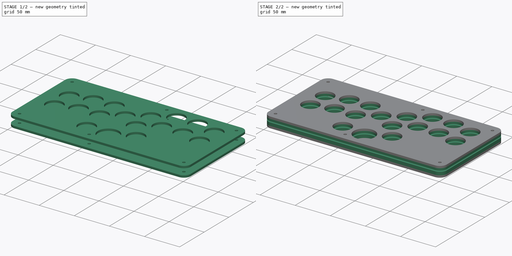
[diagram: build sequence overview — one tinted view per stage of 2, left to right]
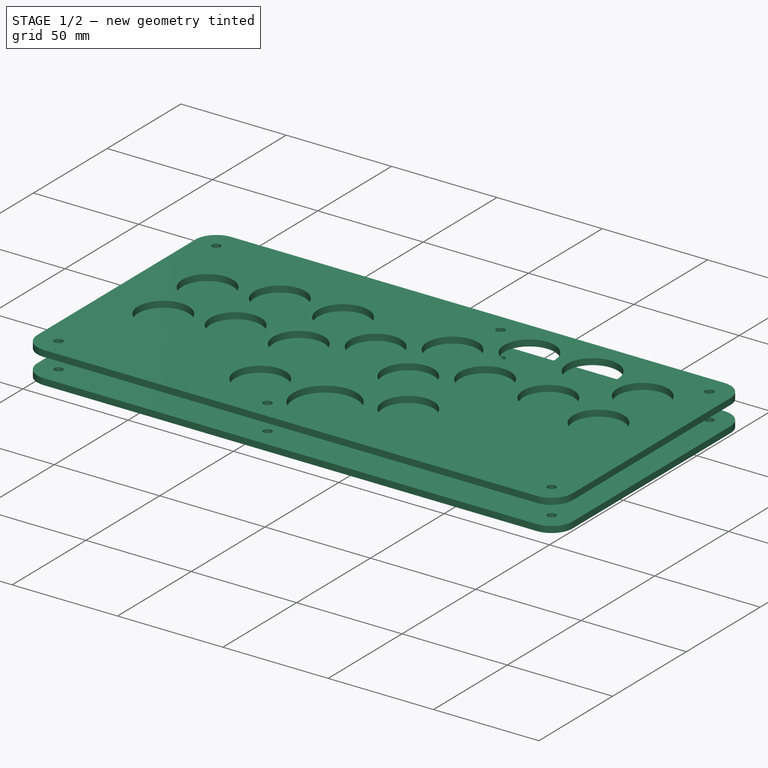
[diagram: stage 1 of 2 — iso view after this stage's code; geometry added in this stage tinted green]
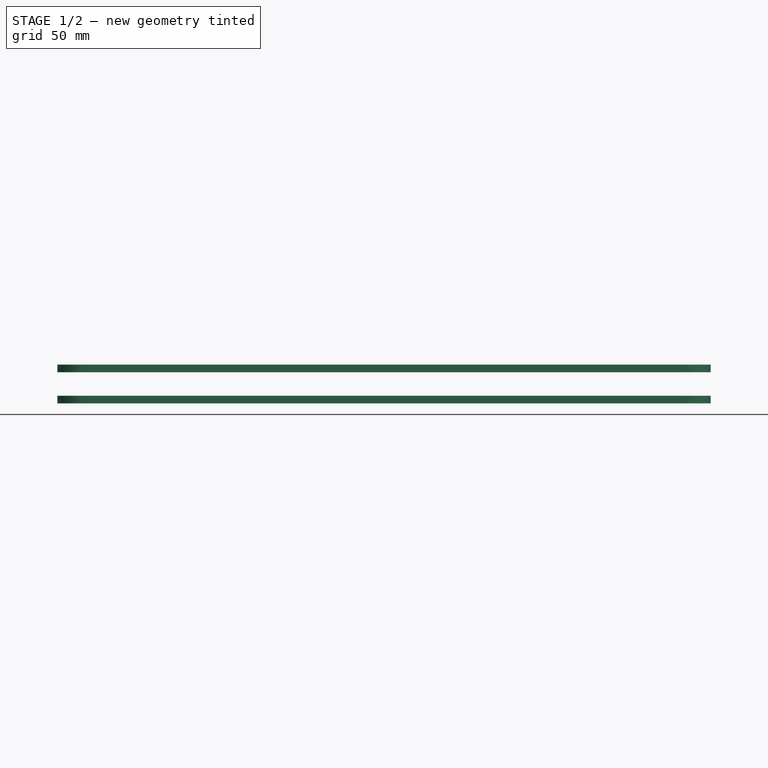
[diagram: stage 1 of 2 — front view after this stage's code; geometry added in this stage tinted green]
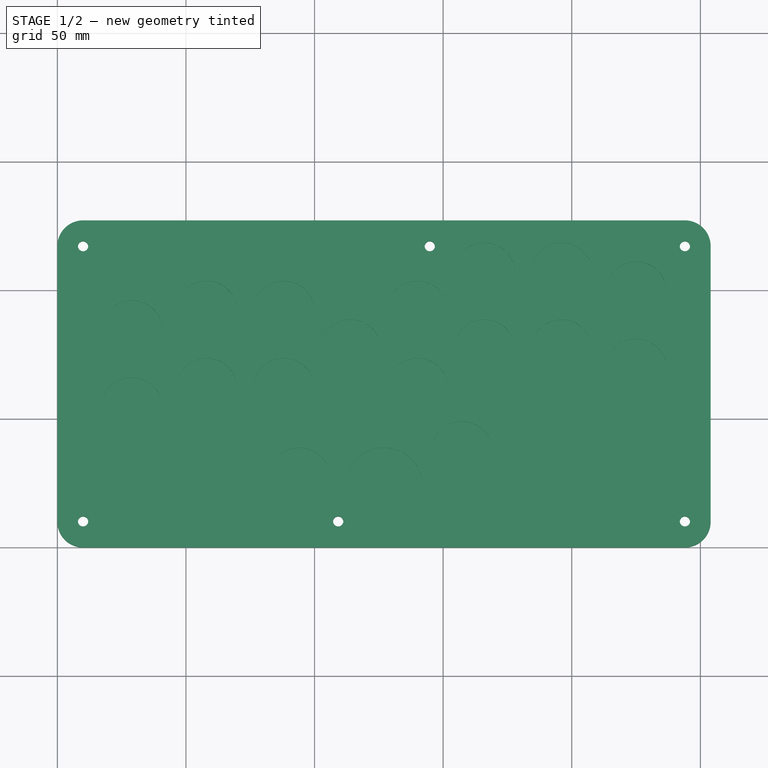
[diagram: stage 1 of 2 — top view after this stage's code; geometry added in this stage tinted green]
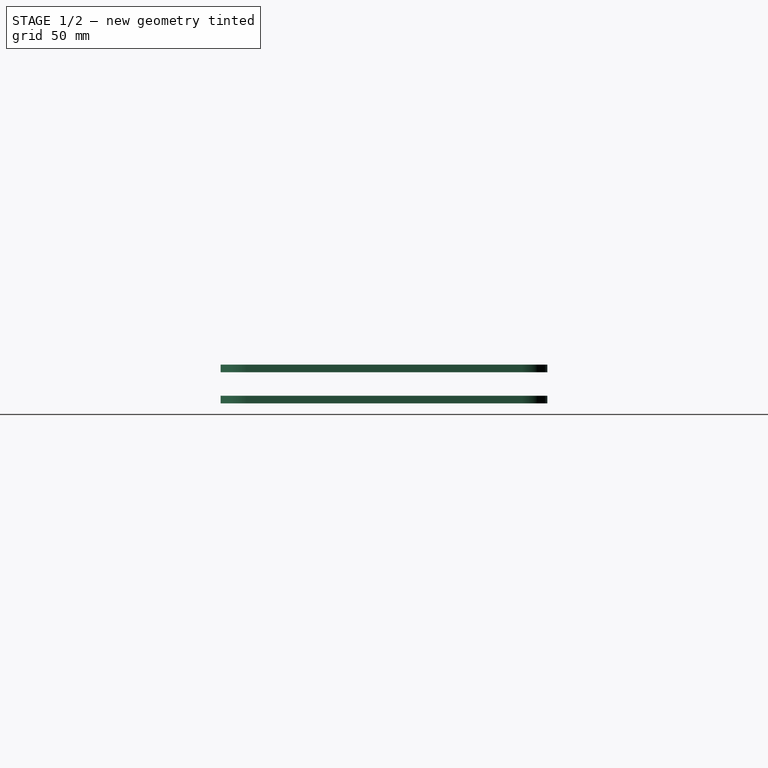
[diagram: stage 1 of 2 — right view after this stage's code; geometry added in this stage tinted green]
FCSTD DOCUMENT  (FreeCAD 0.20R29177 +426 (Git))
Label: complete
License: All rights reserved
LicenseURL: http://en.wikipedia.org/wiki/All_rights_reserved
objects: Sketcher::SketchObject×4, Part::Extrusion×4, App::VRMLObject×1
note: 8 computed .brp shape members not serialized (recipe doc carries the construction recipe); baked Part::Feature solids carry a one-line shape summary decoded from their .brp

FEATURE [Part::Extrusion] Extrude002
  Base = -> Sketch002
  Dir = (0,0,1)
  DirMode = 2
  FaceMakerClass = Part::FaceMakerBullseye
  LengthFwd = 3
  LengthRev = 0
  Placement = pos=(0,0,-5.3) rot=(0,0,1;0rad)
  Reversed = true
  Solid = true
  Symmetric = false
FEATURE [Sketcher::SketchObject] Sketch003
  FullyConstrained = true
  MapMode = 5
  sketch-geometry (60):
    g0: Circle CenterX=165.971 CenterY=76.4159 CenterZ=0 NormalX=0 NormalY=0 NormalZ=1 AngleXU=0 Radius=12
    g1: Circle CenterX=195.971 CenterY=76.4159 CenterZ=0 NormalX=0 NormalY=0 NormalZ=1 AngleXU=0 Radius=12
    g2: Circle CenterX=165.971 CenterY=106.416 CenterZ=0 NormalX=0 NormalY=0 NormalZ=1 AngleXU=0 Radius=12
    g3: Circle CenterX=195.971 CenterY=106.416 CenterZ=0 NormalX=0 NormalY=0 NormalZ=1 AngleXU=0 Radius=12
    g4: Circle CenterX=225.019 CenterY=98.9159 CenterZ=0 NormalX=0 NormalY=0 NormalZ=1 AngleXU=0 Radius=12
    g5: Circle CenterX=225.019 CenterY=68.9159 CenterZ=0 NormalX=0 NormalY=0 NormalZ=1 AngleXU=0 Radius=12
    g6: Circle CenterX=139.99 CenterY=91.4159 CenterZ=0 NormalX=0 NormalY=0 NormalZ=1 AngleXU=0 Radius=12
    g7: Circle CenterX=139.99 CenterY=61.4159 CenterZ=0 NormalX=0 NormalY=0 NormalZ=1 AngleXU=0 Radius=12
    g8: Circle CenterX=114.01 CenterY=76.4159 CenterZ=0 NormalX=0 NormalY=0 NormalZ=1 AngleXU=0 Radius=12
    g9: Circle CenterX=88.0289 CenterY=91.4159 CenterZ=0 NormalX=0 NormalY=0 NormalZ=1 AngleXU=0 Radius=12
    g10: Circle CenterX=58.0289 CenterY=91.4159 CenterZ=0 NormalX=0 NormalY=0 NormalZ=1 AngleXU=0 Radius=12
    g11: Circle CenterX=127 CenterY=23.5841 CenterZ=0 NormalX=0 NormalY=0 NormalZ=1 AngleXU=0 Radius=15
    g12: LineSegment StartX=139.99 StartY=61.4159 StartZ=0 EndX=88.0289 EndY=91.4159 EndZ=0
    g13: LineSegment StartX=139.99 StartY=61.4159 StartZ=0 EndX=127 EndY=61.4159 EndZ=0
    g14: LineSegment StartX=127 StartY=61.4159 StartZ=0 EndX=114.01 EndY=61.4159 EndZ=0
    g15: LineSegment StartX=10 StartY=127 StartZ=0 EndX=244 EndY=127 EndZ=0
    g16: LineSegment StartX=254 StartY=117 StartZ=0 EndX=254 EndY=10 EndZ=0
    g17: LineSegment StartX=244 StartY=0 StartZ=0 EndX=10 EndY=0 EndZ=0
    g18: LineSegment StartX=0 StartY=10 StartZ=0 EndX=0 EndY=117 EndZ=0
    g19: LineSegment StartX=127 StartY=23.5841 StartZ=0 EndX=0 EndY=23.5841 EndZ=0
    g20: LineSegment StartX=127 StartY=23.5841 StartZ=0 EndX=254 EndY=23.5841 EndZ=0
    g21: LineSegment StartX=58.0289 StartY=91.4159 StartZ=0 EndX=88.0289 EndY=91.4159 EndZ=0
    g22: LineSegment StartX=114.01 StartY=76.4159 StartZ=0 EndX=139.99 EndY=91.4159 EndZ=0
    g23: LineSegment StartX=139.99 StartY=91.4159 StartZ=0 EndX=165.971 EndY=106.416 EndZ=0
    g24: LineSegment StartX=165.971 StartY=106.416 StartZ=0 EndX=195.971 EndY=106.416 EndZ=0
    g25: LineSegment StartX=195.971 StartY=106.416 StartZ=0 EndX=225.019 EndY=98.9159 EndZ=0
    g26: LineSegment StartX=225.019 StartY=98.9159 StartZ=0 EndX=225.019 EndY=68.9159 EndZ=0
    g27: LineSegment StartX=165.971 StartY=106.416 StartZ=0 EndX=165.971 EndY=76.4159 EndZ=0
    g28: LineSegment StartX=139.99 StartY=91.4159 StartZ=0 EndX=139.99 EndY=61.4159 EndZ=0
    g29: LineSegment StartX=139.99 StartY=61.4159 StartZ=0 EndX=127 EndY=23.5841 EndZ=0
    g30: Circle CenterX=28.9815 CenterY=83.9159 CenterZ=0 NormalX=0 NormalY=0 NormalZ=1 AngleXU=0 Radius=12
    g31: Circle CenterX=28.9815 CenterY=53.9159 CenterZ=0 NormalX=0 NormalY=0 NormalZ=1 AngleXU=0 Radius=12
    g32: Circle CenterX=58.0289 CenterY=61.4159 CenterZ=0 NormalX=0 NormalY=0 NormalZ=1 AngleXU=0 Radius=12
    g33: Circle CenterX=88.0289 CenterY=61.4159 CenterZ=0 NormalX=0 NormalY=0 NormalZ=1 AngleXU=0 Radius=12
    g34: LineSegment StartX=58.0289 StartY=91.4159 StartZ=0 EndX=28.9815 EndY=83.9159 EndZ=0
    g35: LineSegment StartX=28.9815 StartY=83.9159 StartZ=0 EndX=28.9815 EndY=53.9159 EndZ=0
    g36: LineSegment StartX=58.0289 StartY=91.4159 StartZ=0 EndX=58.0289 EndY=61.4159 EndZ=0
    g37: LineSegment StartX=88.0289 StartY=91.4159 StartZ=0 EndX=88.0289 EndY=61.4159 EndZ=0
    g38: ArcOfCircle CenterX=10 CenterY=117 CenterZ=0 NormalX=0 NormalY=0 NormalZ=1 AngleXU=0 Radius=10 StartAngle=1.5708 EndAngle=3.14159
    g39: ArcOfCircle CenterX=10 CenterY=10 CenterZ=0 NormalX=0 NormalY=0 NormalZ=1 AngleXU=0 Radius=10 StartAngle=3.14159 EndAngle=4.71239
    g40: ArcOfCircle CenterX=244 CenterY=10 CenterZ=0 NormalX=0 NormalY=0 NormalZ=1 AngleXU=0 Radius=10 StartAngle=4.71239 EndAngle=6.28319
    g41: ArcOfCircle CenterX=244 CenterY=117 CenterZ=0 NormalX=0 NormalY=0 NormalZ=1 AngleXU=0 Radius=10 StartAngle=-9e-16 EndAngle=1.5708
    g42: LineSegment StartX=127 StartY=8.58407 StartZ=0 EndX=127 EndY=0 EndZ=0
    g43: LineSegment StartX=165.971 StartY=118.416 StartZ=0 EndX=165.971 EndY=127 EndZ=0
    g44: Circle CenterX=157.215 CenterY=36.8533 CenterZ=0 NormalX=0 NormalY=0 NormalZ=1 AngleXU=0 Radius=12
    g45: Circle CenterX=94.1366 CenterY=26.5841 CenterZ=0 NormalX=0 NormalY=0 NormalZ=1 AngleXU=0 Radius=12
    g46: LineSegment StartX=94.1366 StartY=26.5841 StartZ=0 EndX=127 EndY=23.5841 EndZ=0
    g47: LineSegment StartX=88.0289 StartY=61.4159 StartZ=0 EndX=94.1366 EndY=26.5841 EndZ=0
    g48: LineSegment StartX=157.215 StartY=36.8533 StartZ=0 EndX=127 EndY=23.5841 EndZ=0
    g49: LineSegment StartX=139.99 StartY=61.4159 StartZ=0 EndX=157.215 EndY=36.8533 EndZ=0
    g50: Circle CenterX=10 CenterY=117 CenterZ=0 NormalX=0 NormalY=0 NormalZ=1 AngleXU=0 Radius=2
    g51: Circle CenterX=244 CenterY=117 CenterZ=0 NormalX=0 NormalY=0 NormalZ=1 AngleXU=0 Radius=2
    g52: Circle CenterX=244 CenterY=10 CenterZ=0 NormalX=0 NormalY=0 NormalZ=1 AngleXU=0 Radius=2
    g53: Circle CenterX=10 CenterY=10 CenterZ=0 NormalX=0 NormalY=0 NormalZ=1 AngleXU=0 Radius=2
    g54: Circle CenterX=109.191 CenterY=10 CenterZ=0 NormalX=0 NormalY=0 NormalZ=1 AngleXU=0 Radius=2
    g55: Circle CenterX=144.809 CenterY=117 CenterZ=0 NormalX=0 NormalY=0 NormalZ=1 AngleXU=0 Radius=2
    g56: LineSegment StartX=127 StartY=23.5841 StartZ=0 EndX=109.191 EndY=10 EndZ=0
    g57: LineSegment StartX=109.191 StartY=10 StartZ=0 EndX=94.1366 EndY=26.5841 EndZ=0
    g58: LineSegment StartX=144.809 StartY=117 StartZ=0 EndX=127 EndY=117 EndZ=0
    g59: LineSegment StartX=109.191 StartY=10 StartZ=0 EndX=127 EndY=10 EndZ=0
  constraints (151):
    c: Radius(g6) = 12
    c: Equal(g6,g7)
    c: Equal(g6,g2)
    c: Equal(g6,g0)
    c: Equal(g6,g3)
    c: Equal(g6,g1)
    c: Equal(g6,g4)
    c: Equal(g6,g5)
    c: Equal(g6,g8)
    c: Equal(g6,g9)
    c: Equal(g6,g10)
    c: Radius(g11) = 15
    c: Horizontal(g2,g3)
    c: Horizontal(g0,g1)
    c: Vertical(g2,g0)
    c: Vertical(g3,g1)
    c: Vertical(g4,g5)
    c: Vertical(g6,g7)
    c: DistanceY(g4,g3) = 7.5
    c: DistanceY(g6,g2) = 15
    c: Coincident(g12,g7)
    c: Coincident(g12,g9)
    c: PointOnObject(g8,g12)
    c: Horizontal(g9,g10)
    c: Coincident(g13,g7)
    c: Horizontal(g13)
    c: Coincident(g14,g13)
    c: Horizontal(g14)
    c: Vertical(g14,g8)
    c: Equal(g13,g14)
    c: Vertical(g13,g11)
    c: Distance(g7,g11) = 40
    c: Horizontal(g15)
    c: Horizontal(g17)
    c: Vertical(g16)
    c: Vertical(g18)
    c: Coincident(g19,g11)
    c: PointOnObject(g19,g18)
    c: Horizontal(g19)
    c: Coincident(g20,g11)
    c: PointOnObject(g20,g16)
    c: Horizontal(g20)
    c: Equal(g20,g19)
    c: Coincident(g21,g10)
    c: Coincident(g21,g9)
    c: Coincident(g22,g8)
    c: Coincident(g22,g6)
    c: Coincident(g23,g6)
    c: Coincident(g23,g2)
    c: Coincident(g24,g2)
    c: Coincident(g24,g3)
    c: Coincident(g25,g3)
    c: Coincident(g25,g4)
    c: Coincident(g26,g4)
    c: Coincident(g26,g5)
    c: Coincident(g27,g2)
    c: Coincident(g27,g0)
    c: Coincident(g28,g6)
    c: Coincident(g28,g7)
    c: Coincident(g29,g7)
    c: Coincident(g29,g11)
    c: Distance(g23) = 30
    c: Equal(g23,g24)
    c: Equal(g23,g25)
    c: Equal(g23,g27)
    c: Equal(g23,g26)
    c: Equal(g23,g22)
    c: Equal(g23,g28)
    c: Equal(g23,g21)
    c: Horizontal(g9,g6)
    c: PointOnObject(g8,g23)
    c: Equal(g6,g30)
    c: Equal(g6,g31)
    c: Equal(g6,g32)
    c: DistanceY(g30,g10) = 7.5
    c: Coincident(g34,g10)
    c: Coincident(g34,g30)
    c: Coincident(g35,g30)
    c: Coincident(g35,g31)
    c: Vertical(g31,g30)
    c: Equal(g6,g33)
    c: Vertical(g32,g10)
    c: Coincident(g36,g10)
    c: Coincident(g36,g32)
    c: Coincident(g37,g9)
    c: Coincident(g37,g33)
    c: Vertical(g9,g33)
    c: Equal(g23, g34-g37) x4
    c: Tangent(g15,g38) = 1.5708
    c: Tangent(g18,g38) = 1.5708
    c: Tangent(g17,g39) = 1.5708
    c: Tangent(g18,g39) = 1.5708
    c: Tangent(g16,g40) = 1.5708
    c: Tangent(g17,g40) = 1.5708
    c: Tangent(g15,g41) = 1.5708
    c: Tangent(g16,g41) = 1.5708
    c: Equal(g39,g38)
    c: Equal(g39,g40)
    c: Equal(g39,g41)
    c: Radius(g39) = 10
    c: PointOnObject(g42,g11)
    c: PointOnObject(g42,g17)
    c: Perpendicular(g11,g42)
    c: Vertical(g42)
    c: DistanceY(g17,g15) = 127
    c: DistanceX(g18,g16) = 254
    c: PointOnObject(g43,g2)
    c: PointOnObject(g43,g15)
    c: Vertical(g43)
    c: Perpendicular(g2,g43)
    c: Equal(g43,g42)
    c: Equal(g6,g44)
    c: Equal(g6,g45)
    c: Coincident(g46,g45)
    c: Coincident(g46,g11)
    c: Distance(g46) = 33
    c: DistanceY(g11,g45) = 3
    c: Coincident(g47,g33)
    c: Coincident(g47,g45)
    c: Coincident(g48,g44)
    c: Coincident(g48,g11)
    c: Equal(g46,g48)
    c: Coincident(g49,g7)
    c: Coincident(g49,g44)
    c: Equal(g49,g23)
    c: Coincident(g50,g38)
    c: Coincident(g51,g41)
    c: Coincident(g52,g40)
    c: Coincident(g53,g39)
    c: Radius(g50) = 2
    c: Equal(g50,g53)
    c: Equal(g50,g51)
    c: Equal(g50,g52)
    c: Horizontal(g55,g38)
    c: Horizontal(g39,g54)
    c: Equal(g50,g55)
    c: Equal(g50,g54)
    c: Coincident(g56,g11)
    c: Coincident(g56,g54)
    c: Coincident(g57,g54)
    c: Coincident(g57,g45)
    c: Equal(g57,g56)
    c: Coincident(g58,g55)
    c: Horizontal(g58)
    c: Coincident(g59,g54)
    c: Horizontal(g59)
    c: Vertical(g59,g42)
    c: Vertical(g58,g42)
    c: Equal(g58,g59)
    c: Vertical(g18,g-1)
    c: Horizontal(g17,g-1)
FEATURE [Part::Extrusion] Extrude003
  Base = -> Sketch003
  Dir = (0,0,1)
  DirMode = 2
  FaceMakerClass = Part::FaceMakerBullseye
  LengthFwd = 3
  LengthRev = 0
  Placement = pos=(0,0,3.8) rot=(0,0,1;0rad)
  Solid = true
  Symmetric = false
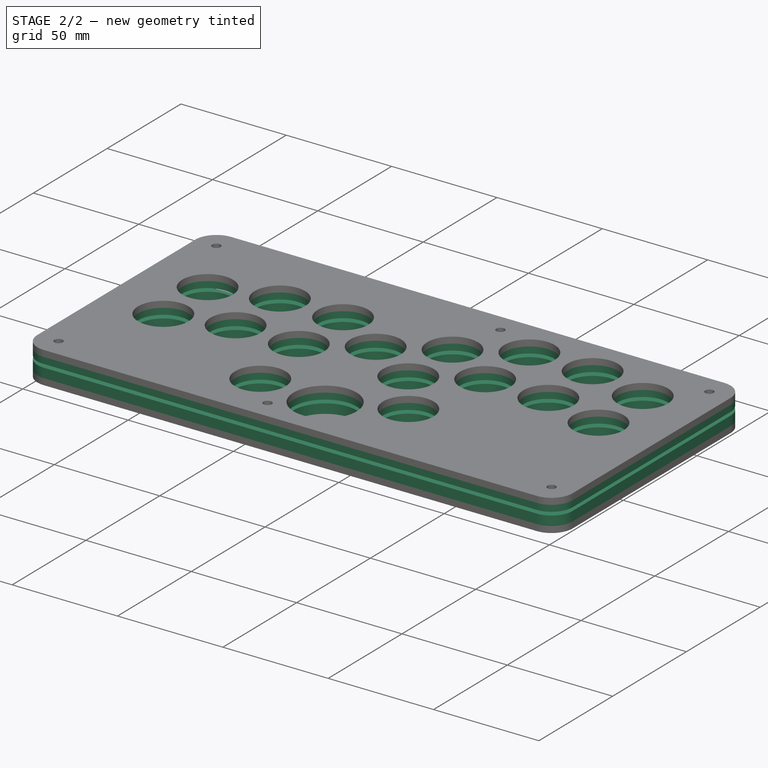
[diagram: stage 2 of 2 — iso view after this stage's code; geometry added in this stage tinted green]
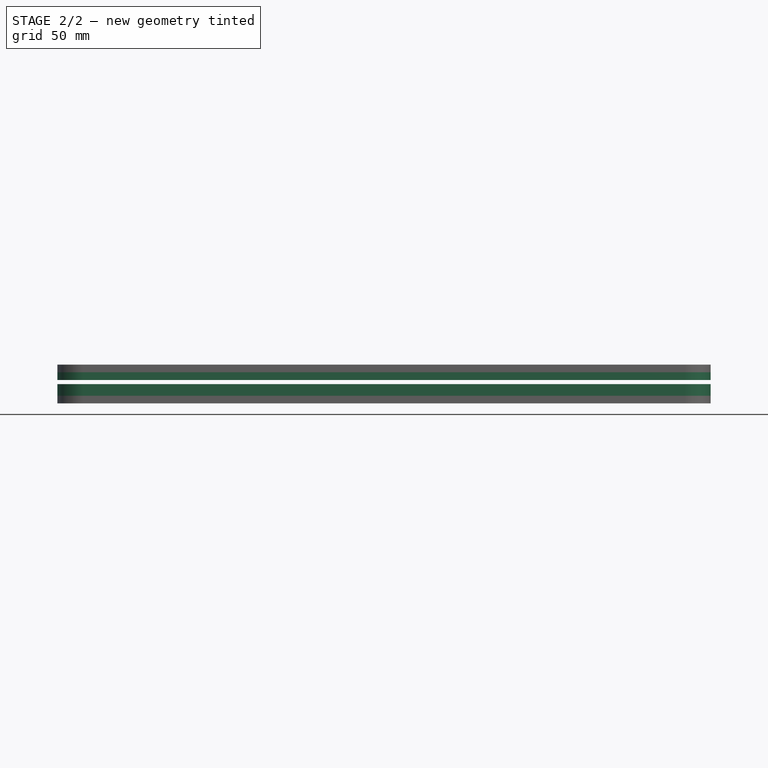
[diagram: stage 2 of 2 — front view after this stage's code; geometry added in this stage tinted green]
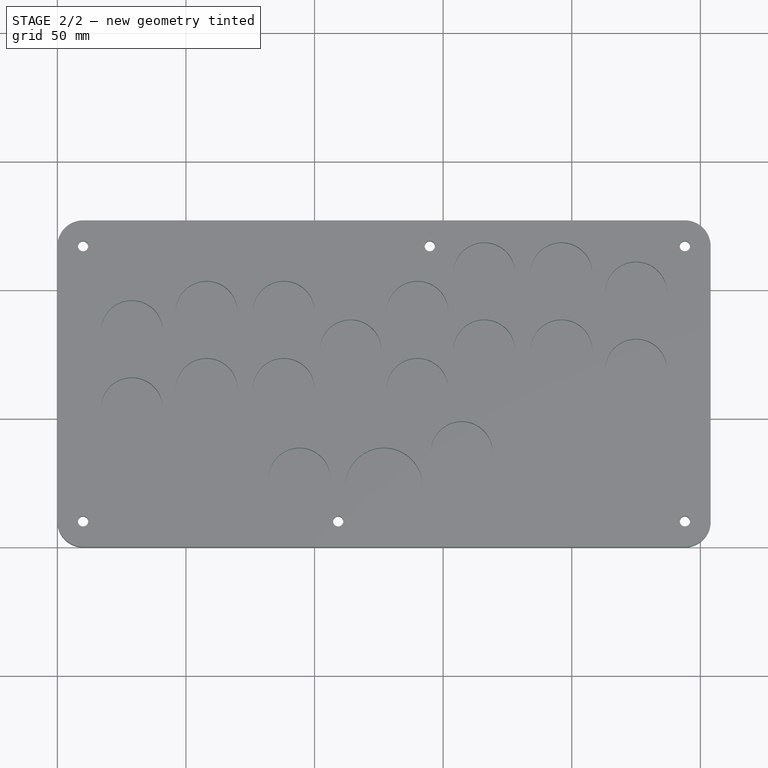
[diagram: stage 2 of 2 — top view after this stage's code; geometry added in this stage tinted green]
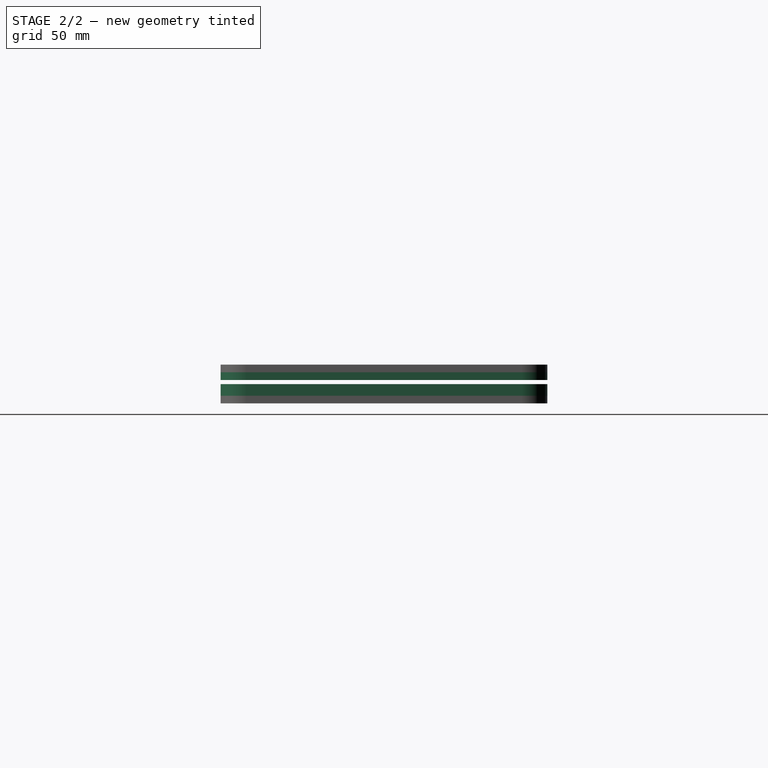
[diagram: stage 2 of 2 — right view after this stage's code; geometry added in this stage tinted green]
FEATURE [App::VRMLObject] proj
  Placement = pos=(277,155.5,0) rot=(0,1,0;3.14159rad)
FEATURE [Sketcher::SketchObject] Sketch
  FullyConstrained = true
  MapMode = 5
  sketch-geometry (78):
    g0: Circle CenterX=165.971 CenterY=76.4159 CenterZ=0 NormalX=0 NormalY=0 NormalZ=1 AngleXU=0 Radius=12
    g1: Circle CenterX=195.971 CenterY=76.4159 CenterZ=0 NormalX=0 NormalY=0 NormalZ=1 AngleXU=0 Radius=12
    g2: Circle CenterX=165.971 CenterY=106.416 CenterZ=0 NormalX=0 NormalY=0 NormalZ=1 AngleXU=0 Radius=12
    g3: Circle CenterX=195.971 CenterY=106.416 CenterZ=0 NormalX=0 NormalY=0 NormalZ=1 AngleXU=0 Radius=12
    g4: Circle CenterX=225.019 CenterY=98.9159 CenterZ=0 NormalX=0 NormalY=0 NormalZ=1 AngleXU=0 Radius=12
    g5: Circle CenterX=225.019 CenterY=68.9159 CenterZ=0 NormalX=0 NormalY=0 NormalZ=1 AngleXU=0 Radius=12
    g6: Circle CenterX=139.99 CenterY=91.4159 CenterZ=0 NormalX=0 NormalY=0 NormalZ=1 AngleXU=0 Radius=12
    g7: Circle CenterX=139.99 CenterY=61.4159 CenterZ=0 NormalX=0 NormalY=0 NormalZ=1 AngleXU=0 Radius=12
    g8: Circle CenterX=114.01 CenterY=76.4159 CenterZ=0 NormalX=0 NormalY=0 NormalZ=1 AngleXU=0 Radius=12
    g9: Circle CenterX=88.0289 CenterY=91.4159 CenterZ=0 NormalX=0 NormalY=0 NormalZ=1 AngleXU=0 Radius=12
    g10: Circle CenterX=58.0289 CenterY=91.4159 CenterZ=0 NormalX=0 NormalY=0 NormalZ=1 AngleXU=0 Radius=12
    g11: Circle CenterX=127 CenterY=23.5841 CenterZ=0 NormalX=0 NormalY=0 NormalZ=1 AngleXU=0 Radius=15
    g12: LineSegment StartX=139.99 StartY=61.4159 StartZ=0 EndX=88.0289 EndY=91.4159 EndZ=0
    g13: LineSegment StartX=139.99 StartY=61.4159 StartZ=0 EndX=127 EndY=61.4159 EndZ=0
    g14: LineSegment StartX=127 StartY=61.4159 StartZ=0 EndX=114.01 EndY=61.4159 EndZ=0
    g15: LineSegment StartX=10 StartY=127 StartZ=0 EndX=244 EndY=127 EndZ=0
    g16: LineSegment StartX=254 StartY=117 StartZ=0 EndX=254 EndY=10 EndZ=0
    g17: LineSegment StartX=244 StartY=0 StartZ=0 EndX=10 EndY=0 EndZ=0
    g18: LineSegment StartX=0 StartY=10 StartZ=0 EndX=0 EndY=117 EndZ=0
    g19: LineSegment StartX=127 StartY=23.5841 StartZ=0 EndX=0 EndY=23.5841 EndZ=0
    g20: LineSegment StartX=127 StartY=23.5841 StartZ=0 EndX=254 EndY=23.5841 EndZ=0
    g21: LineSegment StartX=58.0289 StartY=91.4159 StartZ=0 EndX=88.0289 EndY=91.4159 EndZ=0
    g22: LineSegment StartX=114.01 StartY=76.4159 StartZ=0 EndX=139.99 EndY=91.4159 EndZ=0
    g23: LineSegment StartX=139.99 StartY=91.4159 StartZ=0 EndX=165.971 EndY=106.416 EndZ=0
    g24: LineSegment StartX=165.971 StartY=106.416 StartZ=0 EndX=195.971 EndY=106.416 EndZ=0
    g25: LineSegment StartX=195.971 StartY=106.416 StartZ=0 EndX=225.019 EndY=98.9159 EndZ=0
    g26: LineSegment StartX=225.019 StartY=98.9159 StartZ=0 EndX=225.019 EndY=68.9159 EndZ=0
    g27: LineSegment StartX=165.971 StartY=106.416 StartZ=0 EndX=165.971 EndY=76.4159 EndZ=0
    g28: LineSegment StartX=139.99 StartY=91.4159 StartZ=0 EndX=139.99 EndY=61.4159 EndZ=0
    g29: LineSegment StartX=139.99 StartY=61.4159 StartZ=0 EndX=127 EndY=23.5841 EndZ=0
    g30: Circle CenterX=28.9815 CenterY=83.9159 CenterZ=0 NormalX=0 NormalY=0 NormalZ=1 AngleXU=0 Radius=12
    g31: Circle CenterX=28.9815 CenterY=53.9159 CenterZ=0 NormalX=0 NormalY=0 NormalZ=1 AngleXU=0 Radius=12
    g32: Circle CenterX=58.0289 CenterY=61.4159 CenterZ=0 NormalX=0 NormalY=0 NormalZ=1 AngleXU=0 Radius=12
    g33: Circle CenterX=88.0289 CenterY=61.4159 CenterZ=0 NormalX=0 NormalY=0 NormalZ=1 AngleXU=0 Radius=12
    g34: LineSegment StartX=58.0289 StartY=91.4159 StartZ=0 EndX=28.9815 EndY=83.9159 EndZ=0
    g35: LineSegment StartX=28.9815 StartY=83.9159 StartZ=0 EndX=28.9815 EndY=53.9159 EndZ=0
    g36: LineSegment StartX=58.0289 StartY=91.4159 StartZ=0 EndX=58.0289 EndY=61.4159 EndZ=0
    g37: LineSegment StartX=88.0289 StartY=91.4159 StartZ=0 EndX=88.0289 EndY=61.4159 EndZ=0
    g38: ArcOfCircle CenterX=10 CenterY=117 CenterZ=0 NormalX=0 NormalY=0 NormalZ=1 AngleXU=0 Radius=10 StartAngle=1.5708 EndAngle=3.14159
    g39: ArcOfCircle CenterX=10 CenterY=10 CenterZ=0 NormalX=0 NormalY=0 NormalZ=1 AngleXU=0 Radius=10 StartAngle=3.14159 EndAngle=4.71239
    g40: ArcOfCircle CenterX=244 CenterY=10 CenterZ=0 NormalX=0 NormalY=0 NormalZ=1 AngleXU=0 Radius=10 StartAngle=4.71239 EndAngle=6.28319
    g41: ArcOfCircle CenterX=244 CenterY=117 CenterZ=0 NormalX=0 NormalY=0 NormalZ=1 AngleXU=0 Radius=10 StartAngle=-9e-16 EndAngle=1.5708
    g42: LineSegment StartX=127 StartY=8.58407 StartZ=0 EndX=127 EndY=0 EndZ=0
    g43: LineSegment StartX=165.971 StartY=118.416 StartZ=0 EndX=165.971 EndY=127 EndZ=0
    g44: LineSegment StartX=17.522 StartY=119.1 StartZ=0 EndX=44.422 EndY=119.1 EndZ=0
    g45: LineSegment StartX=44.422 StartY=119.1 StartZ=0 EndX=44.422 EndY=97.64 EndZ=0
    g46: LineSegment StartX=44.422 StartY=97.64 StartZ=0 EndX=17.522 EndY=97.64 EndZ=0
    g47: LineSegment StartX=17.522 StartY=97.64 StartZ=0 EndX=17.522 EndY=119.1 EndZ=0
    g48: Circle CenterX=157.215 CenterY=36.8533 CenterZ=0 NormalX=0 NormalY=0 NormalZ=1 AngleXU=0 Radius=12
    g49: Circle CenterX=94.1366 CenterY=26.5841 CenterZ=0 NormalX=0 NormalY=0 NormalZ=1 AngleXU=0 Radius=12
    g50: LineSegment StartX=94.1366 StartY=26.5841 StartZ=0 EndX=127 EndY=23.5841 EndZ=0
    g51: LineSegment StartX=20 StartY=117 StartZ=0 EndX=41.744 EndY=117 EndZ=0
    g52: LineSegment StartX=41.744 StartY=117 StartZ=0 EndX=41.744 EndY=106.136 EndZ=0
    g53: LineSegment StartX=41.744 StartY=106.136 StartZ=0 EndX=20 EndY=106.136 EndZ=0
    g54: LineSegment StartX=20 StartY=106.136 StartZ=0 EndX=20 EndY=117 EndZ=0
    g55: LineSegment StartX=88.0289 StartY=61.4159 StartZ=0 EndX=94.1366 EndY=26.5841 EndZ=0
    g56: LineSegment StartX=157.215 StartY=36.8533 StartZ=0 EndX=127 EndY=23.5841 EndZ=0
    g57: LineSegment StartX=139.99 StartY=61.4159 StartZ=0 EndX=157.215 EndY=36.8533 EndZ=0
    g58: Circle CenterX=10 CenterY=117 CenterZ=0 NormalX=0 NormalY=0 NormalZ=1 AngleXU=0 Radius=2
    g59: Circle CenterX=244 CenterY=117 CenterZ=0 NormalX=0 NormalY=0 NormalZ=1 AngleXU=0 Radius=2
    g60: Circle CenterX=244 CenterY=10 CenterZ=0 NormalX=0 NormalY=0 NormalZ=1 AngleXU=0 Radius=2
    g61: Circle CenterX=10 CenterY=10 CenterZ=0 NormalX=0 NormalY=0 NormalZ=1 AngleXU=0 Radius=2
    g62: Circle CenterX=109.191 CenterY=10 CenterZ=0 NormalX=0 NormalY=0 NormalZ=1 AngleXU=0 Radius=2
    g63: Circle CenterX=144.809 CenterY=117 CenterZ=0 NormalX=0 NormalY=0 NormalZ=1 AngleXU=0 Radius=2
    g64: LineSegment StartX=127 StartY=23.5841 StartZ=0 EndX=109.191 EndY=10 EndZ=0
    g65: LineSegment StartX=109.191 StartY=10 StartZ=0 EndX=94.1366 EndY=26.5841 EndZ=0
    g66: LineSegment StartX=144.809 StartY=117 StartZ=0 EndX=127 EndY=117 EndZ=0
    g67: LineSegment StartX=109.191 StartY=10 StartZ=0 EndX=127 EndY=10 EndZ=0
    g68: LineSegment StartX=23.172 StartY=98.48 StartZ=0 EndX=38.772 EndY=98.48 EndZ=0
    g69: LineSegment StartX=38.772 StartY=98.48 StartZ=0 EndX=44.422 EndY=98.48 EndZ=0
    g70: LineSegment StartX=23.172 StartY=98.48 StartZ=0 EndX=17.522 EndY=98.48 EndZ=0
    g71: LineSegment StartX=23.172 StartY=98.48 StartZ=0 EndX=23.172 EndY=108.71 EndZ=0
    g72: LineSegment StartX=23.172 StartY=108.71 StartZ=0 EndX=38.772 EndY=108.71 EndZ=0
    g73: LineSegment StartX=38.772 StartY=108.71 StartZ=0 EndX=38.772 EndY=98.48 EndZ=0
    g74: ArcOfCircle CenterX=23.172 CenterY=98.48 CenterZ=0 NormalX=0 NormalY=0 NormalZ=1 AngleXU=0 Radius=0.5 StartAngle=1.5708 EndAngle=4.71239
    g75: ArcOfCircle CenterX=38.772 CenterY=98.48 CenterZ=0 NormalX=0 NormalY=0 NormalZ=1 AngleXU=0 Radius=0.5 StartAngle=4.71239 EndAngle=7.85398
    g76: LineSegment StartX=23.172 StartY=97.98 StartZ=0 EndX=38.772 EndY=97.98 EndZ=0
    g77: LineSegment StartX=23.172 StartY=98.98 StartZ=0 EndX=38.772 EndY=98.98 EndZ=0
  constraints (202):
    c: Radius(g6) = 12
    c: Equal(g6,g7)
    c: Equal(g6,g2)
    c: Equal(g6,g0)
    c: Equal(g6,g3)
    c: Equal(g6,g1)
    c: Equal(g6,g4)
    c: Equal(g6,g5)
    c: Equal(g6,g8)
    c: Equal(g6,g9)
    c: Equal(g6,g10)
    c: Radius(g11) = 15
    c: Horizontal(g2,g3)
    c: Horizontal(g0,g1)
    c: Vertical(g2,g0)
    c: Vertical(g3,g1)
    c: Vertical(g4,g5)
    c: Vertical(g6,g7)
    c: DistanceY(g4,g3) = 7.5
    c: DistanceY(g6,g2) = 15
    c: Coincident(g12,g7)
    c: Coincident(g12,g9)
    c: PointOnObject(g8,g12)
    c: Horizontal(g9,g10)
    c: Coincident(g13,g7)
    c: Horizontal(g13)
    c: Coincident(g14,g13)
    c: Horizontal(g14)
    c: Vertical(g14,g8)
    c: Equal(g13,g14)
    c: Vertical(g13,g11)
    c: Distance(g7,g11) = 40
    c: Horizontal(g15)
    c: Horizontal(g17)
    c: Vertical(g16)
    c: Vertical(g18)
    c: Coincident(g19,g11)
    c: PointOnObject(g19,g18)
    c: Horizontal(g19)
    c: Coincident(g20,g11)
    c: PointOnObject(g20,g16)
    c: Horizontal(g20)
    c: Equal(g20,g19)
    c: Coincident(g21,g10)
    c: Coincident(g21,g9)
    c: Coincident(g22,g8)
    c: Coincident(g22,g6)
    c: Coincident(g23,g6)
    c: Coincident(g23,g2)
    c: Coincident(g24,g2)
    c: Coincident(g24,g3)
    c: Coincident(g25,g3)
    c: Coincident(g25,g4)
    c: Coincident(g26,g4)
    c: Coincident(g26,g5)
    c: Coincident(g27,g2)
    c: Coincident(g27,g0)
    c: Coincident(g28,g6)
    c: Coincident(g28,g7)
    c: Coincident(g29,g7)
    c: Coincident(g29,g11)
    c: Distance(g23) = 30
    c: Equal(g23,g24)
    c: Equal(g23,g25)
    c: Equal(g23,g27)
    c: Equal(g23,g26)
    c: Equal(g23,g22)
    c: Equal(g23,g28)
    c: Equal(g23,g21)
    c: Horizontal(g9,g6)
    c: PointOnObject(g8,g23)
    c: Equal(g6,g30)
    c: Equal(g6,g31)
    c: Equal(g6,g32)
    c: DistanceY(g30,g10) = 7.5
    c: Coincident(g34,g10)
    c: Coincident(g34,g30)
    c: Coincident(g35,g30)
    c: Coincident(g35,g31)
    c: Vertical(g31,g30)
    c: Equal(g6,g33)
    c: Vertical(g32,g10)
    c: Coincident(g36,g10)
    c: Coincident(g36,g32)
    c: Coincident(g37,g9)
    c: Coincident(g37,g33)
    c: Vertical(g9,g33)
    c: Equal(g23, g34-g37) x4
    c: Tangent(g15,g38) = 1.5708
    c: Tangent(g18,g38) = 1.5708
    c: Tangent(g17,g39) = 1.5708
    c: Tangent(g18,g39) = 1.5708
    c: Tangent(g16,g40) = 1.5708
    c: Tangent(g17,g40) = 1.5708
    c: Tangent(g15,g41) = 1.5708
    c: Tangent(g16,g41) = 1.5708
    c: Equal(g39,g38)
    c: Equal(g39,g40)
    c: Equal(g39,g41)
    c: Radius(g39) = 10
    c: PointOnObject(g42,g11)
    c: PointOnObject(g42,g17)
    c: Perpendicular(g11,g42)
    c: Vertical(g42)
    c: DistanceY(g17,g15) = 127
    c: DistanceX(g18,g16) = 254
    c: PointOnObject(g43,g2)
    c: PointOnObject(g43,g15)
    c: Vertical(g43)
    c: Perpendicular(g2,g43)
    c: Equal(g43,g42)
    c: Coincident(g44,g45)
    c: Coincident(g45,g46)
    c: Coincident(g46,g47)
    c: Coincident(g47,g44)
    c: Horizontal(g44)
    c: Horizontal(g46)
    c: Vertical(g45)
    c: Vertical(g47)
    c: DistanceX(g46,g46) = 26.9
    c: DistanceY(g47,g47) = 21.46
    c: Equal(g6,g48)
    c: Equal(g6,g49)
    c: Coincident(g50,g49)
    c: Coincident(g50,g11)
    c: Distance(g50) = 33
    c: DistanceY(g11,g49) = 3
    c: Coincident(g51,g52)
    c: Coincident(g52,g53)
    c: Coincident(g53,g54)
    c: Coincident(g54,g51)
    c: Horizontal(g51)
    c: Horizontal(g53)
    c: Vertical(g52)
    c: Vertical(g54)
    c: DistanceY(g54,g54) = 10.864
    c: DistanceX(g51,g51) = 21.744
    c: DistanceY(g51,g44) = 2.1
    c: DistanceX(g44,g51) = 2.478
    c: DistanceY(g51,g15) = 10
    c: DistanceX(g18,g51) = 20
    c: Coincident(g55,g33)
    c: Coincident(g55,g49)
    c: Coincident(g56,g48)
    c: Coincident(g56,g11)
    c: Equal(g50,g56)
    c: Coincident(g57,g7)
    c: Coincident(g57,g48)
    c: Equal(g57,g23)
    c: Coincident(g58,g38)
    c: Coincident(g59,g41)
    c: Coincident(g60,g40)
    c: Coincident(g61,g39)
    c: Radius(g58) = 2
    c: Equal(g58,g61)
    c: Equal(g58,g59)
    c: Equal(g58,g60)
    c: Horizontal(g63,g38)
    c: Horizontal(g39,g62)
    c: Equal(g58,g63)
    c: Equal(g58,g62)
    c: Coincident(g64,g11)
    c: Coincident(g64,g62)
    c: Coincident(g65,g62)
    c: Coincident(g65,g49)
    c: Equal(g65,g64)
    c: Coincident(g66,g63)
    c: Horizontal(g66)
    c: Coincident(g67,g62)
    c: Horizontal(g67)
    c: Vertical(g67,g42)
    c: Vertical(g66,g42)
    c: Equal(g66,g67)
    c: Horizontal(g68)
    c: DistanceY(g68,g44) = 20.62
    c: DistanceX(g68,g68) = 15.6
    c: Coincident(g69,g68)
    c: Horizontal(g69)
    c: Coincident(g70,g68)
    c: Horizontal(g70)
    c: PointOnObject(g70,g47)
    c: PointOnObject(g69,g45)
    c: Coincident(g71,g68)
    c: Vertical(g71)
    c: Coincident(g72,g71)
    c: Horizontal(g72)
    c: Coincident(g73,g72)
    c: Coincident(g73,g68)
    c: Vertical(g73)
    c: Equal(g69,g70)
    c: DistanceY(g71,g44) = 10.39
    c: Coincident(g74,g71)
    c: Coincident(g75,g73)
    c: Horizontal(g76)
    c: Coincident(g77,g75)
    c: Horizontal(g77)
    c: Tangent(g77,g74) = 1.5708
    c: Tangent(g76,g74) = -1.5708
    c: Tangent(g76,g75) = -1.5708
    c: DistanceY(g71,g74) = 0.5
    c: Vertical(g18,g-1)
    c: Horizontal(g17,g-1)
FEATURE [Sketcher::SketchObject] Sketch001
  FullyConstrained = false
  MapMode = 5
  sketch-geometry (98):
    g0: Circle CenterX=165.971 CenterY=76.4159 CenterZ=0 NormalX=0 NormalY=0 NormalZ=1 AngleXU=0 Radius=12
    g1: Circle CenterX=195.971 CenterY=76.4159 CenterZ=0 NormalX=0 NormalY=0 NormalZ=1 AngleXU=0 Radius=12
    g2: Circle CenterX=165.971 CenterY=106.416 CenterZ=0 NormalX=0 NormalY=0 NormalZ=1 AngleXU=0 Radius=12
    g3: Circle CenterX=195.971 CenterY=106.416 CenterZ=0 NormalX=0 NormalY=0 NormalZ=1 AngleXU=0 Radius=12
    g4: Circle CenterX=225.019 CenterY=98.9159 CenterZ=0 NormalX=0 NormalY=0 NormalZ=1 AngleXU=0 Radius=12
    g5: Circle CenterX=225.019 CenterY=68.9159 CenterZ=0 NormalX=0 NormalY=0 NormalZ=1 AngleXU=0 Radius=12
    g6: Circle CenterX=139.99 CenterY=91.4159 CenterZ=0 NormalX=0 NormalY=0 NormalZ=1 AngleXU=0 Radius=12
    g7: Circle CenterX=139.99 CenterY=61.4159 CenterZ=0 NormalX=0 NormalY=0 NormalZ=1 AngleXU=0 Radius=12
    g8: Circle CenterX=114.01 CenterY=76.4159 CenterZ=0 NormalX=0 NormalY=0 NormalZ=1 AngleXU=0 Radius=12
    g9: Circle CenterX=88.0289 CenterY=91.4159 CenterZ=0 NormalX=0 NormalY=0 NormalZ=1 AngleXU=0 Radius=12
    g10: Circle CenterX=58.0289 CenterY=91.4159 CenterZ=0 NormalX=0 NormalY=0 NormalZ=1 AngleXU=0 Radius=12
    g11: Circle CenterX=127 CenterY=23.5841 CenterZ=0 NormalX=0 NormalY=0 NormalZ=1 AngleXU=0 Radius=15
    g12: LineSegment StartX=139.99 StartY=61.4159 StartZ=0 EndX=88.0289 EndY=91.4159 EndZ=0
    g13: LineSegment StartX=139.99 StartY=61.4159 StartZ=0 EndX=127 EndY=61.4159 EndZ=0
    g14: LineSegment StartX=127 StartY=61.4159 StartZ=0 EndX=114.01 EndY=61.4159 EndZ=0
    g15: LineSegment StartX=254 StartY=117 StartZ=0 EndX=254 EndY=10 EndZ=0
    g16: LineSegment StartX=244 StartY=0 StartZ=0 EndX=10 EndY=0 EndZ=0
    g17: LineSegment StartX=0 StartY=10 StartZ=0 EndX=0 EndY=117 EndZ=0
    g18: LineSegment StartX=127 StartY=23.5841 StartZ=0 EndX=0 EndY=23.5841 EndZ=0
    g19: LineSegment StartX=127 StartY=23.5841 StartZ=0 EndX=254 EndY=23.5841 EndZ=0
    g20: LineSegment StartX=58.0289 StartY=91.4159 StartZ=0 EndX=88.0289 EndY=91.4159 EndZ=0
    g21: LineSegment StartX=114.01 StartY=76.4159 StartZ=0 EndX=139.99 EndY=91.4159 EndZ=0
    g22: LineSegment StartX=139.99 StartY=91.4159 StartZ=0 EndX=165.971 EndY=106.416 EndZ=0
    g23: LineSegment StartX=165.971 StartY=106.416 StartZ=0 EndX=195.971 EndY=106.416 EndZ=0
    g24: LineSegment StartX=195.971 StartY=106.416 StartZ=0 EndX=225.019 EndY=98.9159 EndZ=0
    g25: LineSegment StartX=225.019 StartY=98.9159 StartZ=0 EndX=225.019 EndY=68.9159 EndZ=0
    g26: LineSegment StartX=165.971 StartY=106.416 StartZ=0 EndX=165.971 EndY=76.4159 EndZ=0
    g27: LineSegment StartX=139.99 StartY=91.4159 StartZ=0 EndX=139.99 EndY=61.4159 EndZ=0
    g28: LineSegment StartX=139.99 StartY=61.4159 StartZ=0 EndX=127 EndY=23.5841 EndZ=0
    g29: Circle CenterX=28.9815 CenterY=83.9159 CenterZ=0 NormalX=0 NormalY=0 NormalZ=1 AngleXU=0 Radius=12
    g30: Circle CenterX=28.9815 CenterY=53.9159 CenterZ=0 NormalX=0 NormalY=0 NormalZ=1 AngleXU=0 Radius=12
    g31: Circle CenterX=58.0289 CenterY=61.4159 CenterZ=0 NormalX=0 NormalY=0 NormalZ=1 AngleXU=0 Radius=12
    g32: Circle CenterX=88.0289 CenterY=61.4159 CenterZ=0 NormalX=0 NormalY=0 NormalZ=1 AngleXU=0 Radius=12
    g33: LineSegment StartX=58.0289 StartY=91.4159 StartZ=0 EndX=28.9815 EndY=83.9159 EndZ=0
    g34: LineSegment StartX=28.9815 StartY=83.9159 StartZ=0 EndX=28.9815 EndY=53.9159 EndZ=0
    g35: LineSegment StartX=58.0289 StartY=91.4159 StartZ=0 EndX=58.0289 EndY=61.4159 EndZ=0
    g36: LineSegment StartX=88.0289 StartY=91.4159 StartZ=0 EndX=88.0289 EndY=61.4159 EndZ=0
    g37: ArcOfCircle CenterX=10 CenterY=117 CenterZ=0 NormalX=0 NormalY=0 NormalZ=1 AngleXU=0 Radius=10 StartAngle=1.5708 EndAngle=3.14159
    g38: ArcOfCircle CenterX=10 CenterY=10 CenterZ=0 NormalX=0 NormalY=0 NormalZ=1 AngleXU=0 Radius=10 StartAngle=3.14159 EndAngle=4.71239
    g39: ArcOfCircle CenterX=244 CenterY=10 CenterZ=0 NormalX=0 NormalY=0 NormalZ=1 AngleXU=0 Radius=10 StartAngle=4.71239 EndAngle=6.28319
    g40: ArcOfCircle CenterX=244 CenterY=117 CenterZ=0 NormalX=0 NormalY=0 NormalZ=1 AngleXU=0 Radius=10 StartAngle=-9e-16 EndAngle=1.5708
    g41: LineSegment StartX=127 StartY=8.58407 StartZ=0 EndX=127 EndY=0 EndZ=0
    g42: LineSegment StartX=165.971 StartY=118.416 StartZ=0 EndX=165.971 EndY=127 EndZ=0
    g43: LineSegment StartX=17.522 StartY=119.1 StartZ=0 EndX=44.422 EndY=119.1 EndZ=0
    g44: LineSegment StartX=44.422 StartY=119.1 StartZ=0 EndX=44.422 EndY=97.64 EndZ=0
    g45: LineSegment StartX=44.422 StartY=97.64 StartZ=0 EndX=17.522 EndY=97.64 EndZ=0
    g46: LineSegment StartX=17.522 StartY=97.64 StartZ=0 EndX=17.522 EndY=119.1 EndZ=0
    g47: Circle CenterX=157.215 CenterY=36.8533 CenterZ=0 NormalX=0 NormalY=0 NormalZ=1 AngleXU=0 Radius=12
    g48: Circle CenterX=94.1366 CenterY=26.5841 CenterZ=0 NormalX=0 NormalY=0 NormalZ=1 AngleXU=0 Radius=12
    g49: LineSegment StartX=94.1366 StartY=26.5841 StartZ=0 EndX=127 EndY=23.5841 EndZ=0
    g50: LineSegment StartX=118.48 StartY=127 StartZ=0 EndX=118.48 EndY=119.41 EndZ=0
    g51: LineSegment StartX=118.48 StartY=119.41 StartZ=0 EndX=109.54 EndY=119.41 EndZ=0
    g52: LineSegment StartX=109.54 StartY=119.41 StartZ=0 EndX=109.54 EndY=127 EndZ=0
    g53: LineSegment StartX=95.2346 StartY=127 StartZ=0 EndX=95.2346 EndY=118.4 EndZ=0
    g54: LineSegment StartX=95.2346 StartY=118.4 StartZ=0 EndX=81.9846 EndY=118.4 EndZ=0
    g55: LineSegment StartX=81.9846 StartY=118.4 StartZ=0 EndX=81.9846 EndY=127 EndZ=0
    g56: LineSegment StartX=25.372 StartY=127 StartZ=0 EndX=25.372 EndY=123.25 EndZ=0
    g57: LineSegment StartX=25.372 StartY=123.25 StartZ=0 EndX=17.522 EndY=123.25 EndZ=0
    g58: LineSegment StartX=17.522 StartY=123.25 StartZ=0 EndX=17.522 EndY=127 EndZ=0
    g59: LineSegment StartX=20 StartY=117 StartZ=0 EndX=41.744 EndY=117 EndZ=0
    g60: LineSegment StartX=41.744 StartY=117 StartZ=0 EndX=41.744 EndY=106.136 EndZ=0
    g61: LineSegment StartX=41.744 StartY=106.136 StartZ=0 EndX=20 EndY=106.136 EndZ=0
    g62: LineSegment StartX=20 StartY=106.136 StartZ=0 EndX=20 EndY=117 EndZ=0
    g63: LineSegment StartX=109.54 StartY=122.805 StartZ=0 EndX=114.01 EndY=122.805 EndZ=0
    g64: LineSegment StartX=114.01 StartY=122.805 StartZ=0 EndX=118.48 EndY=122.805 EndZ=0
    g65: LineSegment StartX=95.2346 StartY=122.462 StartZ=0 EndX=88.6096 EndY=122.462 EndZ=0
    g66: LineSegment StartX=88.6096 StartY=122.462 StartZ=0 EndX=81.9846 EndY=122.462 EndZ=0
    g67: LineSegment StartX=88.0289 StartY=61.4159 StartZ=0 EndX=94.1366 EndY=26.5841 EndZ=0
    g68: LineSegment StartX=157.215 StartY=36.8533 StartZ=0 EndX=127 EndY=23.5841 EndZ=0
    g69: LineSegment StartX=139.99 StartY=61.4159 StartZ=0 EndX=157.215 EndY=36.8533 EndZ=0
    g70: LineSegment StartX=44.422 StartY=127 StartZ=0 EndX=44.422 EndY=123.25 EndZ=0
    g71: LineSegment StartX=44.422 StartY=123.25 StartZ=0 EndX=36.572 EndY=123.25 EndZ=0
    g72: LineSegment StartX=36.572 StartY=123.25 StartZ=0 EndX=36.572 EndY=127 EndZ=0
    g73: Circle CenterX=10 CenterY=117 CenterZ=0 NormalX=0 NormalY=0 NormalZ=1 AngleXU=0 Radius=2
    g74: Circle CenterX=244 CenterY=117 CenterZ=0 NormalX=0 NormalY=0 NormalZ=1 AngleXU=0 Radius=2
    g75: Circle CenterX=244 CenterY=10 CenterZ=0 NormalX=0 NormalY=0 NormalZ=1 AngleXU=0 Radius=2
    g76: Circle CenterX=10 CenterY=10 CenterZ=0 NormalX=0 NormalY=0 NormalZ=1 AngleXU=0 Radius=2
    g77: Circle CenterX=109.191 CenterY=10 CenterZ=0 NormalX=0 NormalY=0 NormalZ=1 AngleXU=0 Radius=2
    g78: Circle CenterX=144.809 CenterY=117 CenterZ=0 NormalX=0 NormalY=0 NormalZ=1 AngleXU=0 Radius=2
    g79: LineSegment StartX=127 StartY=23.5841 StartZ=0 EndX=109.191 EndY=10 EndZ=0
    g80: LineSegment StartX=109.191 StartY=10 StartZ=0 EndX=94.1366 EndY=26.5841 EndZ=0
    g81: LineSegment StartX=144.809 StartY=117 StartZ=0 EndX=127 EndY=117 EndZ=0
    g82: LineSegment StartX=109.191 StartY=10 StartZ=0 EndX=127 EndY=10 EndZ=0
    g83: LineSegment StartX=23.172 StartY=98.48 StartZ=0 EndX=38.772 EndY=98.48 EndZ=0
    g84: LineSegment StartX=38.772 StartY=98.48 StartZ=0 EndX=44.422 EndY=98.48 EndZ=0
    g85: LineSegment StartX=23.172 StartY=98.48 StartZ=0 EndX=17.522 EndY=98.48 EndZ=0
    g86: LineSegment StartX=23.172 StartY=98.48 StartZ=0 EndX=23.172 EndY=108.71 EndZ=0
    g87: LineSegment StartX=23.172 StartY=108.71 StartZ=0 EndX=38.772 EndY=108.71 EndZ=0
    g88: LineSegment StartX=38.772 StartY=108.71 StartZ=0 EndX=38.772 EndY=98.48 EndZ=0
    g89: ArcOfCircle CenterX=23.172 CenterY=98.48 CenterZ=0 NormalX=0 NormalY=0 NormalZ=1 AngleXU=0 Radius=0.5 StartAngle=1.5708 EndAngle=4.71239
    g90: ArcOfCircle CenterX=38.772 CenterY=98.48 CenterZ=0 NormalX=0 NormalY=0 NormalZ=1 AngleXU=0 Radius=0.5 StartAngle=4.71239 EndAngle=7.85398
    g91: LineSegment StartX=23.172 StartY=97.98 StartZ=0 EndX=38.772 EndY=97.98 EndZ=0
    g92: LineSegment StartX=23.172 StartY=98.98 StartZ=0 EndX=38.772 EndY=98.98 EndZ=0
    g93: LineSegment StartX=10 StartY=127 StartZ=0 EndX=17.522 EndY=127 EndZ=0
    g94: LineSegment StartX=25.372 StartY=127 StartZ=0 EndX=36.572 EndY=127 EndZ=0
    g95: LineSegment StartX=44.422 StartY=127 StartZ=0 EndX=81.9846 EndY=127 EndZ=0
    g96: LineSegment StartX=95.2346 StartY=127 StartZ=0 EndX=109.54 EndY=127 EndZ=0
    g97: LineSegment StartX=118.48 StartY=127 StartZ=0 EndX=244 EndY=127 EndZ=0
  constraints (262):
    c: Radius(g6) = 12
    c: Equal(g6,g7)
    c: Equal(g6,g2)
    c: Equal(g6,g0)
    c: Equal(g6,g3)
    c: Equal(g6,g1)
    c: Equal(g6,g4)
    c: Equal(g6,g5)
    c: Equal(g6,g8)
    c: Equal(g6,g9)
    c: Equal(g6,g10)
    c: Radius(g11) = 15
    c: Horizontal(g2,g3)
    c: Horizontal(g0,g1)
    c: Vertical(g2,g0)
    c: Vertical(g3,g1)
    c: Vertical(g4,g5)
    c: Vertical(g6,g7)
    c: DistanceY(g4,g3) = 7.5
    c: DistanceY(g6,g2) = 15
    c: Coincident(g12,g7)
    c: Coincident(g12,g9)
    c: PointOnObject(g8,g12)
    c: Horizontal(g9,g10)
    c: Coincident(g13,g7)
    c: Horizontal(g13)
    c: Coincident(g14,g13)
    c: Horizontal(g14)
    c: Vertical(g14,g8)
    c: Equal(g13,g14)
    c: Vertical(g13,g11)
    c: Distance(g7,g11) = 40
    c: Horizontal(g16)
    c: Vertical(g15)
    c: Vertical(g17)
    c: Coincident(g18,g11)
    c: PointOnObject(g18,g17)
    c: Horizontal(g18)
    c: Coincident(g19,g11)
    c: PointOnObject(g19,g15)
    c: Horizontal(g19)
    c: Equal(g19,g18)
    c: Coincident(g20,g10)
    c: Coincident(g20,g9)
    c: Coincident(g21,g8)
    c: Coincident(g21,g6)
    c: Coincident(g22,g6)
    c: Coincident(g22,g2)
    c: Coincident(g23,g2)
    c: Coincident(g23,g3)
    c: Coincident(g24,g3)
    c: Coincident(g24,g4)
    c: Coincident(g25,g4)
    c: Coincident(g25,g5)
    c: Coincident(g26,g2)
    c: Coincident(g26,g0)
    c: Coincident(g27,g6)
    c: Coincident(g27,g7)
    c: Coincident(g28,g7)
    c: Coincident(g28,g11)
    c: Distance(g22) = 30
    c: Equal(g22,g23)
    c: Equal(g22,g24)
    c: Equal(g22,g26)
    c: Equal(g22,g25)
    c: Equal(g22,g21)
    c: Equal(g22,g27)
    c: Equal(g22,g20)
    c: Horizontal(g9,g6)
    c: PointOnObject(g8,g22)
    c: Equal(g6,g29)
    c: Equal(g6,g30)
    c: Equal(g6,g31)
    c: DistanceY(g29,g10) = 7.5
    c: Coincident(g33,g10)
    c: Coincident(g33,g29)
    c: Coincident(g34,g29)
    c: Coincident(g34,g30)
    c: Vertical(g30,g29)
    c: Equal(g6,g32)
    c: Vertical(g31,g10)
    c: Coincident(g35,g10)
    c: Coincident(g35,g31)
    c: Coincident(g36,g9)
    c: Coincident(g36,g32)
    c: Vertical(g9,g32)
    c: Equal(g22, g33-g36) x4
    c: Tangent(g17,g37) = 1.5708
    c: Tangent(g16,g38) = 1.5708
    c: Tangent(g17,g38) = 1.5708
    c: Tangent(g15,g39) = 1.5708
    c: Tangent(g16,g39) = 1.5708
    c: Tangent(g15,g40) = 1.5708
    c: Equal(g38,g37)
    c: Equal(g38,g39)
    c: Equal(g38,g40)
    c: Radius(g38) = 10
    c: PointOnObject(g41,g11)
    c: PointOnObject(g41,g16)
    c: Perpendicular(g11,g41)
    c: Vertical(g41)
    c: DistanceX(g17,g15) = 254
    c: PointOnObject(g42,g2)
    c: Vertical(g42)
    c: Perpendicular(g2,g42)
    c: Equal(g42,g41)
    c: Coincident(g43,g44)
    c: Coincident(g44,g45)
    c: Coincident(g45,g46)
    c: Coincident(g46,g43)
    c: Horizontal(g43)
    c: Horizontal(g45)
    c: Vertical(g44)
    c: Vertical(g46)
    c: DistanceX(g45,g45) = 26.9
    c: DistanceY(g46,g46) = 21.46
    c: Equal(g6,g47)
    c: Equal(g6,g48)
    c: Coincident(g49,g48)
    c: Coincident(g49,g11)
    c: Distance(g49) = 33
    c: DistanceY(g11,g48) = 3
    c: Coincident(g50,g51)
    c: Coincident(g51,g52)
    c: Horizontal(g51)
    c: Vertical(g50)
    c: Vertical(g52)
    c: DistanceX(g51,g51) = 8.94
    c: DistanceY(g52,g52) = 7.59
    c: Coincident(g53,g54)
    c: Coincident(g54,g55)
    c: Horizontal(g54)
    c: Vertical(g53)
    c: Vertical(g55)
    c: DistanceX(g54,g54) = 13.25
    c: DistanceY(g55,g55) = 8.6
    c: Coincident(g56,g57)
    c: Coincident(g57,g58)
    c: Horizontal(g57)
    c: Vertical(g56)
    c: Vertical(g58)
    c: DistanceX(g57,g57) = 7.85
    c: DistanceY(g58,g58) = 3.75
    c: Coincident(g59,g60)
    c: Coincident(g60,g61)
    c: Coincident(g61,g62)
    c: Coincident(g62,g59)
    c: Horizontal(g59)
    c: Horizontal(g61)
    c: Vertical(g60)
    c: Vertical(g62)
    c: DistanceY(g62,g62) = 10.864
    c: DistanceX(g59,g59) = 21.744
    c: DistanceY(g59,g43) = 2.1
    c: DistanceX(g43,g59) = 2.478
    c: PointOnObject(g63,g52)
    c: Horizontal(g63)
    c: Coincident(g64,g63)
    c: PointOnObject(g64,g50)
    c: PointOnObject(g65,g53)
    c: Coincident(g66,g65)
    c: PointOnObject(g66,g55)
    c: Horizontal(g66)
    c: Horizontal(g65)
    c: Horizontal(g64)
    c: Equal(g64,g63)
    c: Equal(g65,g66)
    c: DistanceX(g65,g63) = 25.4
    c: DistanceX(g17,g59) = 20
    c: Vertical(g63,g8)
    c: Coincident(g67,g32)
    c: Coincident(g67,g48)
    c: Coincident(g68,g47)
    c: Coincident(g68,g11)
    c: Equal(g49,g68)
    c: Coincident(g69,g7)
    c: Coincident(g69,g47)
    c: Equal(g69,g22)
    c: Coincident(g70,g71)
    c: Coincident(g71,g72)
    c: Horizontal(g71)
    c: Vertical(g70)
    c: Vertical(g72)
    c: Equal(g57,g71) = 7.85
    c: Equal(g58,g72) = 3.75
    c: Vertical(g57,g43)
    c: Vertical(g70,g43)
    c: Coincident(g73,g37)
    c: Coincident(g74,g40)
    c: Coincident(g75,g39)
    c: Coincident(g76,g38)
    c: Radius(g73) = 2
    c: Equal(g73,g76)
    c: Equal(g73,g74)
    c: Equal(g73,g75)
    c: Horizontal(g78,g37)
    c: Horizontal(g38,g77)
    c: Equal(g73,g78)
    c: Equal(g73,g77)
    c: Coincident(g79,g11)
    c: Coincident(g79,g77)
    c: Coincident(g80,g77)
    c: Coincident(g80,g48)
    c: Equal(g80,g79)
    c: Coincident(g81,g78)
    c: Horizontal(g81)
    c: Coincident(g82,g77)
    c: Horizontal(g82)
    c: Vertical(g82,g41)
    c: Vertical(g81,g41)
    c: Equal(g81,g82)
    c: Horizontal(g83)
    c: DistanceY(g83,g43) = 20.62
    c: DistanceX(g83,g83) = 15.6
    c: Coincident(g84,g83)
    c: Horizontal(g84)
    c: Coincident(g85,g83)
    c: Horizontal(g85)
    c: PointOnObject(g85,g46)
    c: PointOnObject(g84,g44)
    c: Coincident(g86,g83)
    c: Vertical(g86)
    c: Coincident(g87,g86)
    c: Horizontal(g87)
    c: Coincident(g88,g87)
    c: Coincident(g88,g83)
    c: Vertical(g88)
    c: Equal(g84,g85)
    c: DistanceY(g86,g43) = 10.39
    c: Coincident(g89,g86)
    c: Coincident(g90,g88)
    c: Horizontal(g91)
    c: Coincident(g92,g90)
    c: Horizontal(g92)
    c: Tangent(g92,g89) = 1.5708
    c: Tangent(g91,g89) = -1.5708
    c: Tangent(g91,g90) = -1.5708
    c: DistanceY(g86,g89) = 0.5
    c: Vertical(g17,g-1)
    c: Horizontal(g16,g-1)
    c: Coincident(g93,g58)
    c: Horizontal(g93)
    c: Coincident(g94,g56)
    c: Coincident(g94,g72)
    c: Horizontal(g94)
    c: Coincident(g95,g70)
    c: Coincident(g95,g55)
    c: Horizontal(g95)
    c: Coincident(g96,g53)
    c: Coincident(g96,g52)
    c: Horizontal(g96)
    c: Coincident(g97,g50)
    c: Horizontal(g97)
    c: DistanceY(g16,g37) = 127
    c: Tangent(g93,g37) = 1.5708
    c: Horizontal(g56,g37)
    c: Horizontal(g53,g37)
    c: Horizontal(g50,g37)
    c: Horizontal(g70,g37)
    c: Tangent(g97,g40) = 1.5708
    c: DistanceY(g59,g37) = 10
    c: PointOnObject(g42,g97)
FEATURE [Sketcher::SketchObject] Sketch002
  ExternalGeometry = -> [Sketch001]
  FullyConstrained = false
  MapMode = 5
  sketch-geometry (18):
    g0: LineSegment StartX=254 StartY=116.988 StartZ=0 EndX=254 EndY=10 EndZ=0
    g1: LineSegment StartX=244 StartY=0 StartZ=0 EndX=10 EndY=0 EndZ=0
    g2: LineSegment StartX=0 StartY=10 StartZ=0 EndX=0 EndY=117 EndZ=0
    g3: ArcOfCircle CenterX=10 CenterY=117 CenterZ=0 NormalX=0 NormalY=0 NormalZ=1 AngleXU=0 Radius=10 StartAngle=1.5708 EndAngle=3.14159
    g4: ArcOfCircle CenterX=10 CenterY=10 CenterZ=0 NormalX=0 NormalY=0 NormalZ=1 AngleXU=0 Radius=10 StartAngle=3.14159 EndAngle=4.71239
    g5: ArcOfCircle CenterX=244 CenterY=10 CenterZ=0 NormalX=0 NormalY=0 NormalZ=1 AngleXU=0 Radius=10 StartAngle=4.71239 EndAngle=6.28319
    g6: ArcOfCircle CenterX=244 CenterY=116.988 CenterZ=0 NormalX=0 NormalY=0 NormalZ=1 AngleXU=0 Radius=10 StartAngle=0 EndAngle=1.5708
    g7: Circle CenterX=10 CenterY=117 CenterZ=0 NormalX=0 NormalY=0 NormalZ=1 AngleXU=0 Radius=2
    g8: Circle CenterX=244 CenterY=116.988 CenterZ=0 NormalX=0 NormalY=0 NormalZ=1 AngleXU=0 Radius=2
    g9: Circle CenterX=244 CenterY=10 CenterZ=0 NormalX=0 NormalY=0 NormalZ=1 AngleXU=0 Radius=2
    g10: Circle CenterX=10 CenterY=10 CenterZ=0 NormalX=0 NormalY=0 NormalZ=1 AngleXU=0 Radius=2
    g11: Circle CenterX=109.191 CenterY=10 CenterZ=0 NormalX=0 NormalY=0 NormalZ=1 AngleXU=0 Radius=2
    g12: Circle CenterX=144.809 CenterY=117 CenterZ=0 NormalX=0 NormalY=0 NormalZ=1 AngleXU=0 Radius=2
    g13: LineSegment StartX=10 StartY=127 StartZ=0 EndX=81.9846 EndY=127 EndZ=0
    g14: LineSegment StartX=81.9846 StartY=127 StartZ=0 EndX=81.9846 EndY=118.4 EndZ=0
    g15: LineSegment StartX=95.2346 StartY=118.4 StartZ=0 EndX=95.2346 EndY=126.988 EndZ=0
    g16: LineSegment StartX=95.2346 StartY=126.988 StartZ=0 EndX=244 EndY=126.988 EndZ=0
    g17: LineSegment StartX=81.9846 StartY=118.4 StartZ=0 EndX=95.2346 EndY=118.4 EndZ=0
  constraints (41):
    c: Horizontal(g1)
    c: Vertical(g0)
    c: Vertical(g2)
    c: Tangent(g2,g3) = 1.5708
    c: Tangent(g1,g4) = 1.5708
    c: Tangent(g2,g4) = 1.5708
    c: Tangent(g0,g5) = 1.5708
    c: Tangent(g1,g5) = 1.5708
    c: Tangent(g0,g6) = 1.5708
    c: Equal(g4,g3)
    c: Equal(g4,g5)
    c: Equal(g4,g6)
    c: Radius(g4) = 10
    c: DistanceX(g2,g0) = 254
    c: Coincident(g7,g3)
    c: Coincident(g8,g6)
    c: Coincident(g9,g5)
    c: Coincident(g10,g4)
    c: Radius(g7) = 2
    c: Equal(g7,g10)
    c: Equal(g7,g8)
    c: Equal(g7,g9)
    c: Equal(g7,g12)
    c: Equal(g7,g11)
    c: Vertical(g2,g-1)
    c: Horizontal(g1,g-1)
    c: DistanceY(g1,g3) = 127
    c: Coincident(g11,g-4)
    c: Coincident(g12,g-3)
    c: Coincident(g13,g3)
    c: Horizontal(g13)
    c: Coincident(g14,g13)
    c: Coincident(g14,g-5)
    c: Coincident(g15,g-5)
    c: Vertical(g15)
    c: Coincident(g16,g15)
    c: Coincident(g16,g6)
    c: Horizontal(g16)
    c: Vertical(g14)
    c: Coincident(g17,g14)
    c: Coincident(g17,g15)
FEATURE [Part::Extrusion] Extrude
  Base = -> Sketch
  Dir = (0,0,1)
  DirMode = 2
  FaceMakerClass = Part::FaceMakerBullseye
  LengthFwd = 3
  LengthRev = 0
  Placement = pos=(0,0,0.8) rot=(0,0,1;0rad)
  Solid = true
  Symmetric = false
FEATURE [Part::Extrusion] Extrude001
  Base = -> Sketch001
  Dir = (0,0,1)
  DirMode = 2
  FaceMakerClass = Part::FaceMakerBullseye
  LengthFwd = -4.5
  LengthRev = 0
  Placement = pos=(0,0,-0.8) rot=(0,0,1;0rad)
  Solid = true
  Symmetric = false
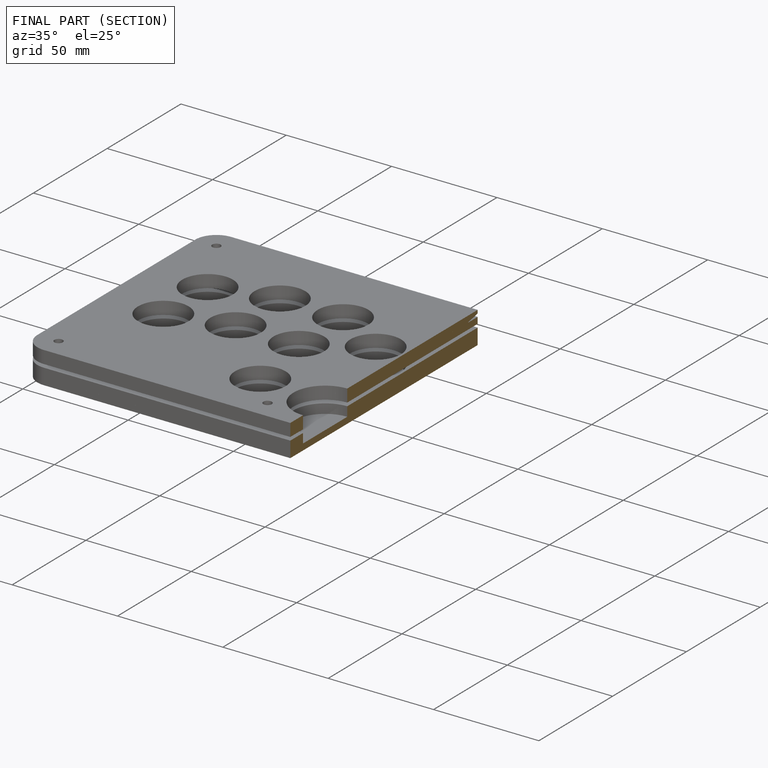
[diagram: finished part — half-section view (interior)]
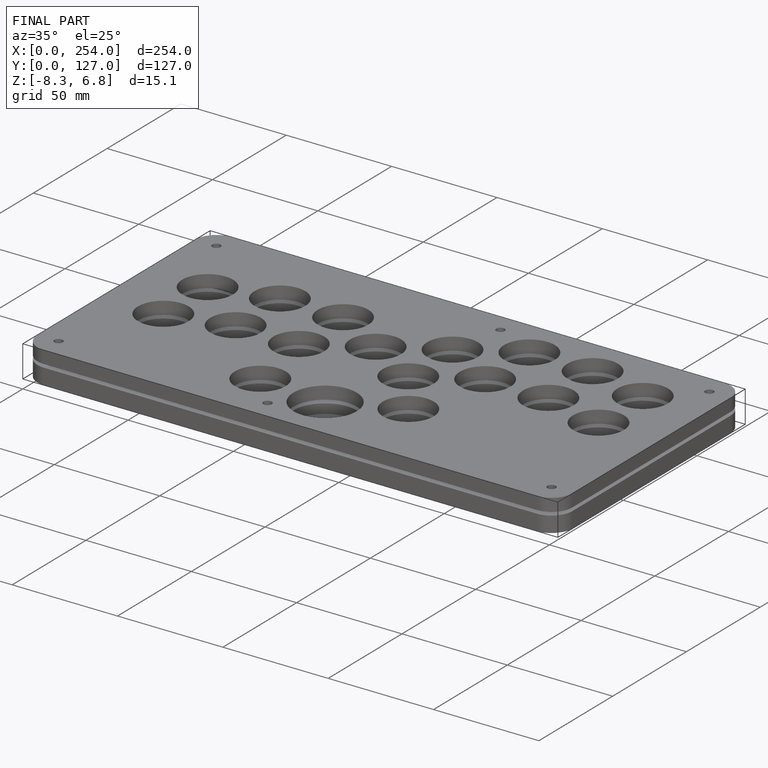
[diagram: finished part — iso view with bounding-box wireframe]
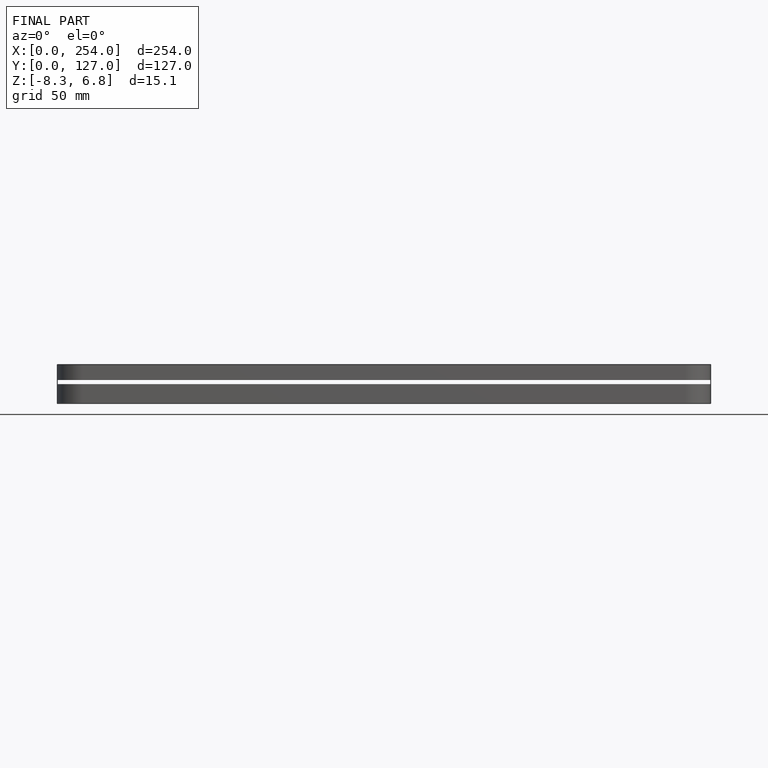
[diagram: finished part — front view with bounding-box wireframe]
